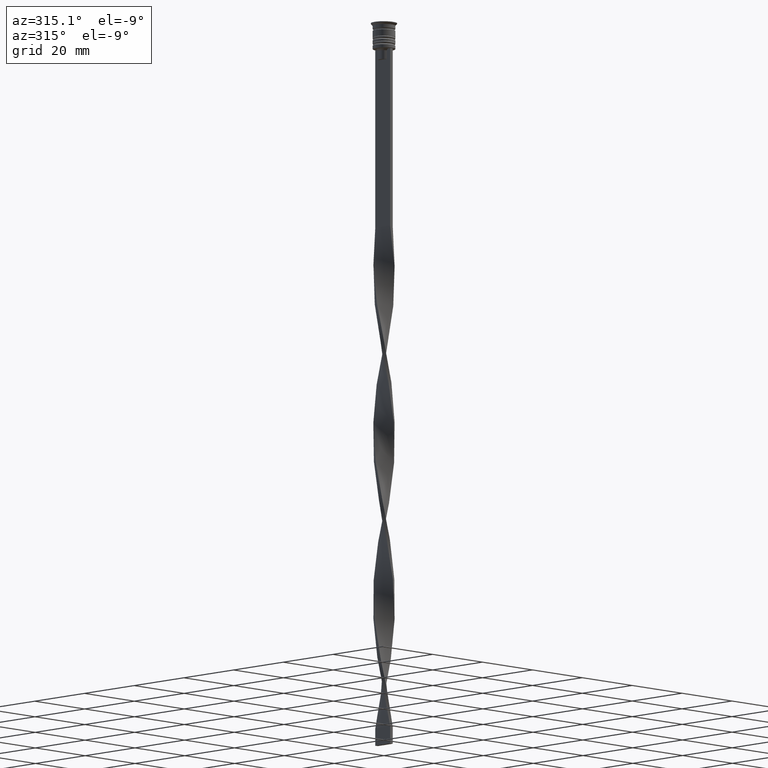
[diagram: clean part render]
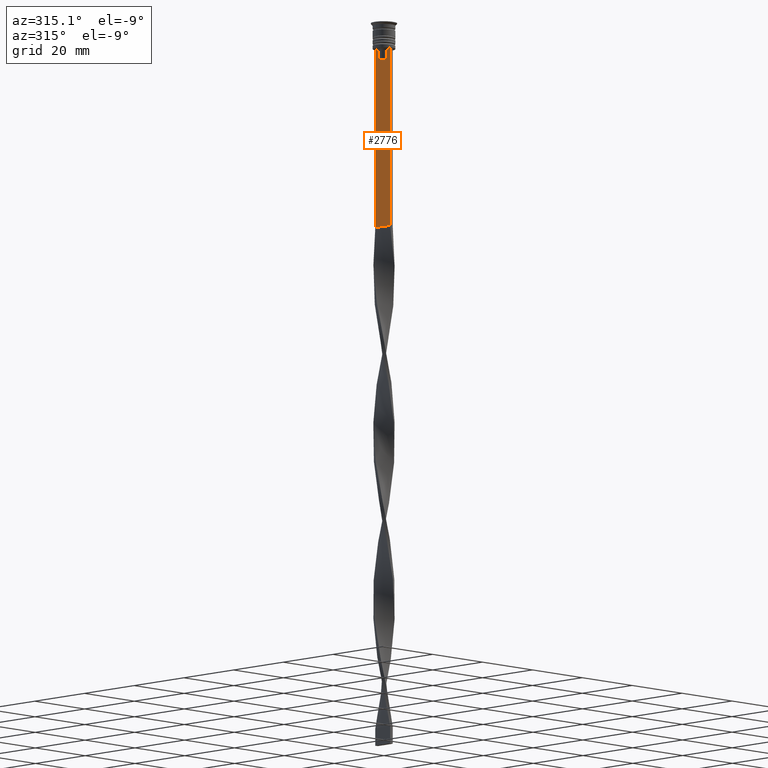
[diagram: same view with one face highlighted and labeled with its STEP entity id]
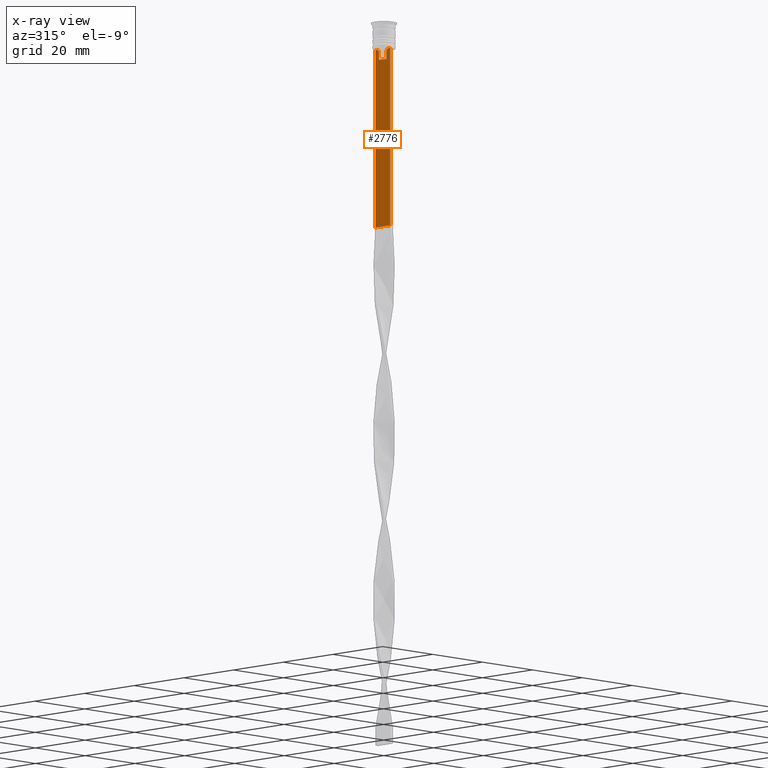
[diagram: x-ray of the same camera — body ghosted, the highlighted face saturated]
A machine part, auxiliary view. The second image highlights one B-rep face of the part: STEP entity #2776.
The next image is the same camera in x-ray: the body ghosted, the highlighted face saturated — about 0% of this face is hidden behind the body in this view.
In plain terms, the highlighted planar face has unit normal (-1, 0, 0).
Its self-contained STEP definition (entity closure, byte-faithful):
#14 = CARTESIAN_POINT ( 'NONE',  ( -0.5000000000000001110, -1.572418519351642230, -8.000000000000000000 ) ) ;
#30 = EDGE_CURVE ( 'NONE', #2198, #2463, #144, .T. ) ;
#42 = CARTESIAN_POINT ( 'NONE',  ( -0.5000000000000001110, -3.000000000000000000, -7.500000000000000000 ) ) ;
#59 = DIRECTION ( 'NONE',  ( 0.000000000000000000, -1.000000000000000000, 0.000000000000000000 ) ) ;
#63 = ORIENTED_EDGE ( 'NONE', *, *, #2468, .F. ) ;
#78 = EDGE_LOOP ( 'NONE', ( #2695, #2803, #748, #3126, #63, #1814, #1165, #560, #1245, #683 ) ) ;
#135 = VECTOR ( 'NONE', #1305, 1000.000000000000000 ) ;
#144 = LINE ( 'NONE', #470, #135 ) ;
#200 = B_SPLINE_CURVE_WITH_KNOTS ( 'NONE', 3,
 ( #2533, #826, #2258, #3371 ),
 .UNSPECIFIED., .F., .F.,
 ( 4, 4 ),
 ( 0.003696428037903516997, 0.004416830248125220952 ),
 .UNSPECIFIED. ) ;
#207 = VERTEX_POINT ( 'NONE', #2470 ) ;
#379 = DIRECTION ( 'NONE',  ( 0.000000000000000000, -1.000000000000000000, 0.000000000000000000 ) ) ;
#396 = VECTOR ( 'NONE', #2188, 1000.000000000000000 ) ;
#422 = VERTEX_POINT ( 'NONE', #614 ) ;
#451 = FACE_OUTER_BOUND ( 'NONE', #78, .T. ) ;
#470 = CARTESIAN_POINT ( 'NONE',  ( -0.5000000000000001110, -1.572418519351642230, 0.000000000000000000 ) ) ;
#560 = ORIENTED_EDGE ( 'NONE', *, *, #30, .F. ) ;
#613 = VECTOR ( 'NONE', #1862, 1000.000000000000000 ) ;
#614 = CARTESIAN_POINT ( 'NONE',  ( -0.5000000000000001110, -3.000000000000000000, -7.500000000000000000 ) ) ;
#658 = CARTESIAN_POINT ( 'NONE',  ( -0.5000000000000001110, 2.091052366632653481, -7.500000000000000000 ) ) ;
#668 = VECTOR ( 'NONE', #2706, 1000.000000000000000 ) ;
#683 = ORIENTED_EDGE ( 'NONE', *, *, #2421, .F. ) ;
#711 = DIRECTION ( 'NONE',  ( 0.000000000000000000, 1.000000000000000000, 0.000000000000000000 ) ) ;
#748 = ORIENTED_EDGE ( 'NONE', *, *, #2536, .T. ) ;
#752 = CARTESIAN_POINT ( 'NONE',  ( -0.5000000000000001110, 1.572418519351642230, 0.000000000000000000 ) ) ;
#774 = VERTEX_POINT ( 'NONE', #3131 ) ;
#816 = LINE ( 'NONE', #42, #3148 ) ;
#819 = EDGE_CURVE ( 'NONE', #892, #774, #3207, .T. ) ;
#826 = CARTESIAN_POINT ( 'NONE',  ( -0.5000000000000001110, 1.918907889994530658, -7.667424704779945976 ) ) ;
#892 = VERTEX_POINT ( 'NONE', #1819 ) ;
#974 = CARTESIAN_POINT ( 'NONE',  ( -0.5000000000000001110, -3.000000000000000000, -58.50000000000000000 ) ) ;
#1153 = VECTOR ( 'NONE', #1897, 1000.000000000000000 ) ;
#1165 = ORIENTED_EDGE ( 'NONE', *, *, #1477, .F. ) ;
#1245 = ORIENTED_EDGE ( 'NONE', *, *, #3017, .F. ) ;
#1248 = CARTESIAN_POINT ( 'NONE',  ( -0.5000000000000001110, 1.572418519351642230, -8.000000000000000000 ) ) ;
#1305 = DIRECTION ( 'NONE',  ( -0.000000000000000000, -0.000000000000000000, 1.000000000000000000 ) ) ;
#1477 = EDGE_CURVE ( 'NONE', #2463, #1831, #2767, .T. ) ;
#1534 = VECTOR ( 'NONE', #379, 1000.000000000000000 ) ;
#1562 = PLANE ( 'NONE',  #2186 ) ;
#1583 = LINE ( 'NONE', #2104, #1534 ) ;
#1600 = CARTESIAN_POINT ( 'NONE',  ( -0.5000000000000001110, -1.572418519351642230, -8.000000000000000000 ) ) ;
#1814 = ORIENTED_EDGE ( 'NONE', *, *, #2694, .F. ) ;
#1819 = CARTESIAN_POINT ( 'NONE',  ( -0.5000000000000001110, -3.000000000000000000, -58.50000000000000000 ) ) ;
#1831 = VERTEX_POINT ( 'NONE', #2791 ) ;
#1862 = DIRECTION ( 'NONE',  ( 0.000000000000000000, 0.000000000000000000, -1.000000000000000000 ) ) ;
#1897 = DIRECTION ( 'NONE',  ( 0.000000000000000000, 0.000000000000000000, -1.000000000000000000 ) ) ;
#2104 = CARTESIAN_POINT ( 'NONE',  ( -0.5000000000000001110, -3.000000000000000000, -7.500000000000000000 ) ) ;
#2186 = AXIS2_PLACEMENT_3D ( 'NONE', #2919, #2627, #3229 ) ;
#2188 = DIRECTION ( 'NONE',  ( 0.000000000000000000, -1.000000000000000000, 0.000000000000000000 ) ) ;
#2198 = VERTEX_POINT ( 'NONE', #3453 ) ;
#2258 = CARTESIAN_POINT ( 'NONE',  ( -0.5000000000000001110, 1.746261636039132092, -7.834330826581080487 ) ) ;
#2260 = VERTEX_POINT ( 'NONE', #1248 ) ;
#2421 = EDGE_CURVE ( 'NONE', #2260, #3504, #2483, .T. ) ;
#2444 = CARTESIAN_POINT ( 'NONE',  ( -0.5000000000000001110, 1.650000000000003464, -10.49999999999999822 ) ) ;
#2463 = VERTEX_POINT ( 'NONE', #1600 ) ;
#2468 = EDGE_CURVE ( 'NONE', #422, #892, #2773, .T. ) ;
#2470 = CARTESIAN_POINT ( 'NONE',  ( -0.5000000000000001110, 3.000000000000000000, -7.500000000000000000 ) ) ;
#2480 = LINE ( 'NONE', #2444, #396 ) ;
#2483 = LINE ( 'NONE', #752, #668 ) ;
#2533 = CARTESIAN_POINT ( 'NONE',  ( -0.5000000000000001110, 2.091052366632653481, -7.500000000000000000 ) ) ;
#2536 = EDGE_CURVE ( 'NONE', #207, #774, #3340, .T. ) ;
#2547 = CARTESIAN_POINT ( 'NONE',  ( -0.5000000000000001110, -1.918909712772151721, -7.667422931978337353 ) ) ;
#2627 = DIRECTION ( 'NONE',  ( -1.000000000000000000, 0.000000000000000000, 0.000000000000000000 ) ) ;
#2694 = EDGE_CURVE ( 'NONE', #1831, #422, #816, .T. ) ;
#2695 = ORIENTED_EDGE ( 'NONE', *, *, #3200, .F. ) ;
#2706 = DIRECTION ( 'NONE',  ( 0.000000000000000000, 0.000000000000000000, -1.000000000000000000 ) ) ;
#2756 = EDGE_CURVE ( 'NONE', #207, #2777, #1583, .T. ) ;
#2767 = B_SPLINE_CURVE_WITH_KNOTS ( 'NONE', 3,
 ( #14, #3143, #2547, #3368 ),
 .UNSPECIFIED., .F., .F.,
 ( 4, 4 ),
 ( 0.008356915209744724543, 0.009073319521387648162 ),
 .UNSPECIFIED. ) ;
#2773 = LINE ( 'NONE', #3282, #1153 ) ;
#2776 = ADVANCED_FACE ( 'NONE', ( #451 ), #1562, .T. ) ;
#2777 = VERTEX_POINT ( 'NONE', #658 ) ;
#2791 = CARTESIAN_POINT ( 'NONE',  ( -0.5000000000000001110, -2.091052366632653481, -7.500000000000000000 ) ) ;
#2803 = ORIENTED_EDGE ( 'NONE', *, *, #2756, .F. ) ;
#2919 = CARTESIAN_POINT ( 'NONE',  ( -0.5000000000000001110, -3.000000000000000000, -1.417237469701779329 ) ) ;
#3017 = EDGE_CURVE ( 'NONE', #3504, #2198, #2480, .T. ) ;
#3126 = ORIENTED_EDGE ( 'NONE', *, *, #819, .F. ) ;
#3131 = CARTESIAN_POINT ( 'NONE',  ( -0.5000000000000001110, 3.000000000000000000, -58.50000000000000000 ) ) ;
#3143 = CARTESIAN_POINT ( 'NONE',  ( -0.5000000000000001110, -1.746240429054158660, -7.834351036433149673 ) ) ;
#3148 = VECTOR ( 'NONE', #59, 1000.000000000000000 ) ;
#3200 = EDGE_CURVE ( 'NONE', #2777, #2260, #200, .T. ) ;
#3207 = LINE ( 'NONE', #974, #3546 ) ;
#3229 = DIRECTION ( 'NONE',  ( 0.000000000000000000, 0.000000000000000000, 1.000000000000000000 ) ) ;
#3282 = CARTESIAN_POINT ( 'NONE',  ( -0.5000000000000001110, -3.000000000000000000, -1.417237469701779329 ) ) ;
#3319 = CARTESIAN_POINT ( 'NONE',  ( -0.5000000000000001110, 3.000000000000000000, -1.417237469701779329 ) ) ;
#3340 = LINE ( 'NONE', #3319, #613 ) ;
#3368 = CARTESIAN_POINT ( 'NONE',  ( -0.5000000000000001110, -2.091052366632653481, -7.500000000000000000 ) ) ;
#3371 = CARTESIAN_POINT ( 'NONE',  ( -0.5000000000000001110, 1.572418519351642230, -8.000000000000000000 ) ) ;
#3440 = CARTESIAN_POINT ( 'NONE',  ( -0.5000000000000001110, 1.572418519351642230, -10.49999999999999822 ) ) ;
#3453 = CARTESIAN_POINT ( 'NONE',  ( -0.5000000000000001110, -1.572418519351642230, -10.49999999999999822 ) ) ;
#3504 = VERTEX_POINT ( 'NONE', #3440 ) ;
#3546 = VECTOR ( 'NONE', #711, 1000.000000000000000 ) ;